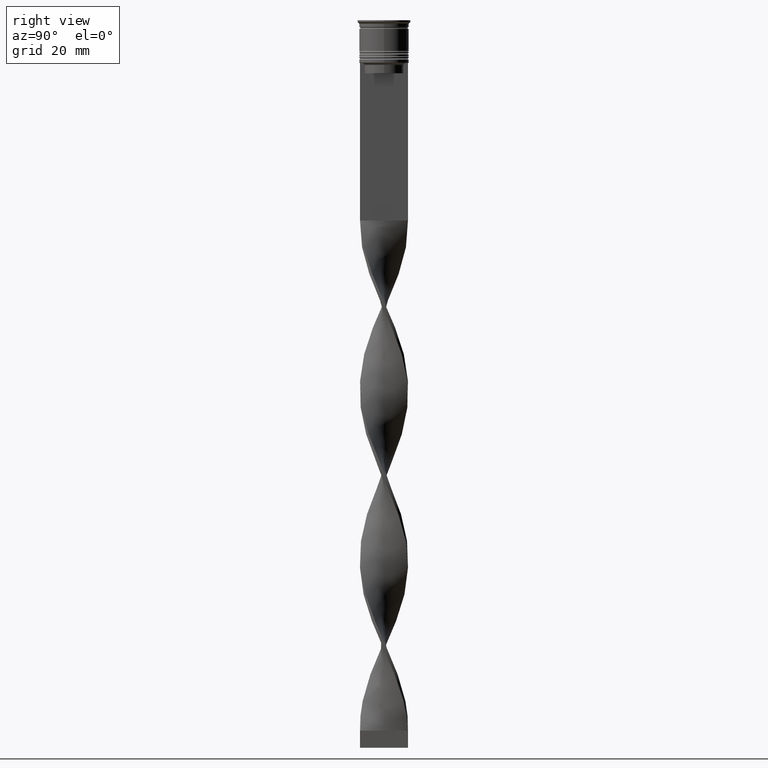
[diagram: clean part render]
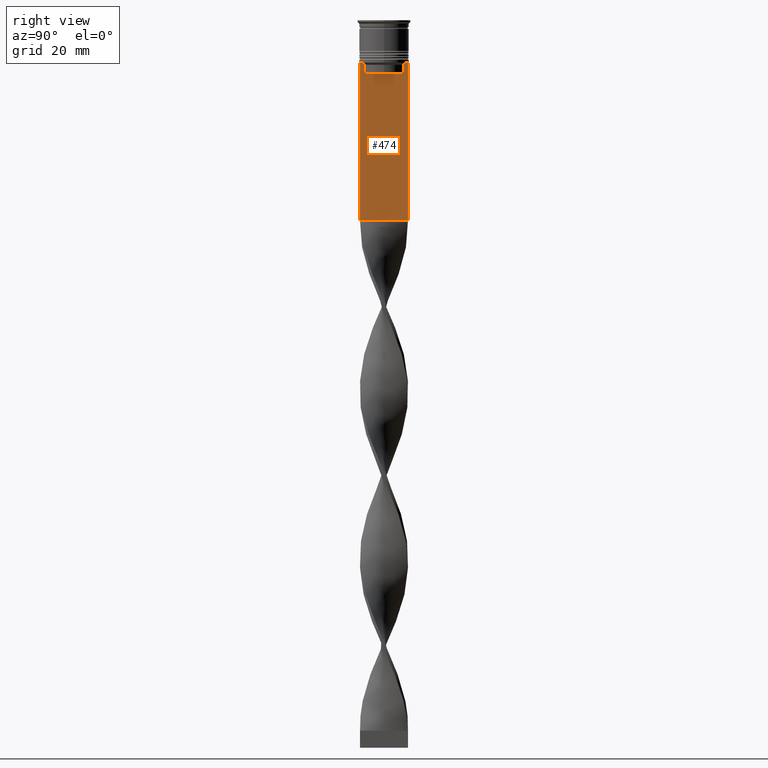
[diagram: same view with one face highlighted and labeled with its STEP entity id]
A machine part, right view. The second image highlights one B-rep face of the part: STEP entity #474.
In plain terms, the highlighted planar face has unit normal (-1, 0, 0).
Its self-contained STEP definition (entity closure, byte-faithful):
#152 = CARTESIAN_POINT ( 'NONE',  ( 0.5000000000000000000, -6.999999999999997335, -58.50000000000000000 ) ) ;
#184 = VECTOR ( 'NONE', #3706, 1000.000000000000000 ) ;
#238 = CARTESIAN_POINT ( 'NONE',  ( 0.5000000000000000000, -6.999999999999997335, -12.50000000000000000 ) ) ;
#260 = LINE ( 'NONE', #238, #3686 ) ;
#304 = CARTESIAN_POINT ( 'NONE',  ( 0.5000000000000000000, -6.999999999999997335, 1.535668847618198329 ) ) ;
#347 = ORIENTED_EDGE ( 'NONE', *, *, #971, .T. ) ;
#362 = VERTEX_POINT ( 'NONE', #3192 ) ;
#388 = CARTESIAN_POINT ( 'NONE',  ( 0.5000000000000000000, -5.962396079681185235, -12.66669137279835589 ) ) ;
#474 = ADVANCED_FACE ( 'NONE', ( #3275 ), #2997, .F. ) ;
#505 = VECTOR ( 'NONE', #1632, 1000.000000000000000 ) ;
#518 = ORIENTED_EDGE ( 'NONE', *, *, #2350, .T. ) ;
#636 = ORIENTED_EDGE ( 'NONE', *, *, #3229, .T. ) ;
#757 = ORIENTED_EDGE ( 'NONE', *, *, #2779, .T. ) ;
#761 = DIRECTION ( 'NONE',  ( 0.000000000000000000, 0.000000000000000000, -1.000000000000000000 ) ) ;
#792 = CARTESIAN_POINT ( 'NONE',  ( 0.5000000000000000000, -6.999999999999997335, -12.50000000000000000 ) ) ;
#824 = DIRECTION ( 'NONE',  ( 0.000000000000000000, -1.000000000000000000, 0.000000000000000000 ) ) ;
#860 = ORIENTED_EDGE ( 'NONE', *, *, #2825, .T. ) ;
#897 = EDGE_CURVE ( 'NONE', #3346, #2538, #2022, .T. ) ;
#971 = EDGE_CURVE ( 'NONE', #362, #3657, #260, .T. ) ;
#1009 = LINE ( 'NONE', #3083, #1117 ) ;
#1029 = CARTESIAN_POINT ( 'NONE',  ( 0.5000000000000000000, 5.962396146966409738, -12.66669130573587054 ) ) ;
#1034 = CARTESIAN_POINT ( 'NONE',  ( 0.5000000000000000000, -5.627832620112292794, -13.00000000000000000 ) ) ;
#1058 = ORIENTED_EDGE ( 'NONE', *, *, #897, .T. ) ;
#1117 = VECTOR ( 'NONE', #761, 1000.000000000000000 ) ;
#1191 = LINE ( 'NONE', #1779, #1241 ) ;
#1241 = VECTOR ( 'NONE', #1800, 1000.000000000000000 ) ;
#1310 = CARTESIAN_POINT ( 'NONE',  ( 0.5000000000000000000, -5.795128760752289665, -12.83336023406855197 ) ) ;
#1338 = CARTESIAN_POINT ( 'NONE',  ( 0.5000000000000000000, -5.627832620112292794, -15.50000000000000000 ) ) ;
#1357 = CARTESIAN_POINT ( 'NONE',  ( 0.5000000000000000000, 6.129641098791995368, -12.50000000000000000 ) ) ;
#1395 = CARTESIAN_POINT ( 'NONE',  ( 0.5000000000000000000, -6.999999999999997335, -58.50000000000000000 ) ) ;
#1423 = LINE ( 'NONE', #3712, #505 ) ;
#1441 = ORIENTED_EDGE ( 'NONE', *, *, #3463, .T. ) ;
#1485 = VERTEX_POINT ( 'NONE', #1338 ) ;
#1520 = VERTEX_POINT ( 'NONE', #2798 ) ;
#1553 = LINE ( 'NONE', #3609, #1669 ) ;
#1558 = CARTESIAN_POINT ( 'NONE',  ( 0.5000000000000000000, -6.129641098791995368, -12.50000000000000000 ) ) ;
#1632 = DIRECTION ( 'NONE',  ( 0.000000000000000000, 0.000000000000000000, -1.000000000000000000 ) ) ;
#1669 = VECTOR ( 'NONE', #2184, 1000.000000000000000 ) ;
#1696 = CARTESIAN_POINT ( 'NONE',  ( 0.5000000000000000000, 6.129641098791995368, -12.50000000000000000 ) ) ;
#1779 = CARTESIAN_POINT ( 'NONE',  ( 0.5000000000000000000, -6.999999999999997335, 1.535668847618198329 ) ) ;
#1800 = DIRECTION ( 'NONE',  ( 0.000000000000000000, 0.000000000000000000, -1.000000000000000000 ) ) ;
#1866 = LINE ( 'NONE', #3614, #3331 ) ;
#1890 = EDGE_LOOP ( 'NONE', ( #347, #2034, #518, #3024, #860, #757, #1441, #636, #1058, #3610 ) ) ;
#1901 = CARTESIAN_POINT ( 'NONE',  ( 0.5000000000000000000, 5.627832620112292794, -13.00000000000000000 ) ) ;
#2022 = LINE ( 'NONE', #1395, #184 ) ;
#2034 = ORIENTED_EDGE ( 'NONE', *, *, #3549, .T. ) ;
#2125 = CARTESIAN_POINT ( 'NONE',  ( 0.5000000000000000000, 5.649999999999998579, -15.50000000000000000 ) ) ;
#2184 = DIRECTION ( 'NONE',  ( 0.000000000000000000, -1.000000000000000000, 0.000000000000000000 ) ) ;
#2350 = EDGE_CURVE ( 'NONE', #2842, #1520, #1009, .T. ) ;
#2434 = LINE ( 'NONE', #2125, #3082 ) ;
#2538 = VERTEX_POINT ( 'NONE', #2937 ) ;
#2547 = CARTESIAN_POINT ( 'NONE',  ( 0.5000000000000000000, 5.795128834036803234, -12.83336016107156574 ) ) ;
#2647 = DIRECTION ( 'NONE',  ( 0.000000000000000000, 0.000000000000000000, 1.000000000000000000 ) ) ;
#2685 = DIRECTION ( 'NONE',  ( -1.000000000000000000, 0.000000000000000000, 0.000000000000000000 ) ) ;
#2779 = EDGE_CURVE ( 'NONE', #3523, #3185, #3266, .T. ) ;
#2798 = CARTESIAN_POINT ( 'NONE',  ( 0.5000000000000000000, 5.627832620112292794, -15.50000000000000000 ) ) ;
#2825 = EDGE_CURVE ( 'NONE', #1485, #3523, #1866, .T. ) ;
#2842 = VERTEX_POINT ( 'NONE', #1901 ) ;
#2913 = VERTEX_POINT ( 'NONE', #792 ) ;
#2915 = EDGE_CURVE ( 'NONE', #362, #2538, #1423, .T. ) ;
#2937 = CARTESIAN_POINT ( 'NONE',  ( 0.5000000000000000000, 7.000000000000002665, -58.50000000000000000 ) ) ;
#2997 = PLANE ( 'NONE',  #3803 ) ;
#3024 = ORIENTED_EDGE ( 'NONE', *, *, #3418, .T. ) ;
#3039 = DIRECTION ( 'NONE',  ( -0.000000000000000000, -0.000000000000000000, 1.000000000000000000 ) ) ;
#3082 = VECTOR ( 'NONE', #3308, 1000.000000000000000 ) ;
#3083 = CARTESIAN_POINT ( 'NONE',  ( 0.5000000000000000000, 5.627832620112292794, 0.000000000000000000 ) ) ;
#3089 = B_SPLINE_CURVE_WITH_KNOTS ( 'NONE', 3,
 ( #1357, #1029, #2547, #3682 ),
 .UNSPECIFIED., .F., .F.,
 ( 4, 4 ),
 ( 0.01045365750109871796, 0.01116204421161398619 ),
 .UNSPECIFIED. ) ;
#3185 = VERTEX_POINT ( 'NONE', #3189 ) ;
#3189 = CARTESIAN_POINT ( 'NONE',  ( 0.5000000000000000000, -6.129641098791995368, -12.50000000000000000 ) ) ;
#3192 = CARTESIAN_POINT ( 'NONE',  ( 0.5000000000000000000, 7.000000000000002665, -12.50000000000000000 ) ) ;
#3229 = EDGE_CURVE ( 'NONE', #2913, #3346, #1191, .T. ) ;
#3266 = B_SPLINE_CURVE_WITH_KNOTS ( 'NONE', 3,
 ( #3333, #1310, #388, #1558 ),
 .UNSPECIFIED., .F., .F.,
 ( 4, 4 ),
 ( 0.02651134470867368836, 0.02721991123504332449 ),
 .UNSPECIFIED. ) ;
#3275 = FACE_OUTER_BOUND ( 'NONE', #1890, .T. ) ;
#3308 = DIRECTION ( 'NONE',  ( 0.000000000000000000, -1.000000000000000000, 0.000000000000000000 ) ) ;
#3331 = VECTOR ( 'NONE', #3039, 1000.000000000000000 ) ;
#3333 = CARTESIAN_POINT ( 'NONE',  ( 0.5000000000000000000, -5.627832620112292794, -13.00000000000000000 ) ) ;
#3346 = VERTEX_POINT ( 'NONE', #152 ) ;
#3418 = EDGE_CURVE ( 'NONE', #1520, #1485, #2434, .T. ) ;
#3463 = EDGE_CURVE ( 'NONE', #3185, #2913, #1553, .T. ) ;
#3523 = VERTEX_POINT ( 'NONE', #1034 ) ;
#3549 = EDGE_CURVE ( 'NONE', #3657, #2842, #3089, .T. ) ;
#3609 = CARTESIAN_POINT ( 'NONE',  ( 0.5000000000000000000, -6.999999999999997335, -12.50000000000000000 ) ) ;
#3610 = ORIENTED_EDGE ( 'NONE', *, *, #2915, .F. ) ;
#3614 = CARTESIAN_POINT ( 'NONE',  ( 0.5000000000000000000, -5.627832620112292794, 0.000000000000000000 ) ) ;
#3657 = VERTEX_POINT ( 'NONE', #1696 ) ;
#3682 = CARTESIAN_POINT ( 'NONE',  ( 0.5000000000000000000, 5.627832620112292794, -13.00000000000000000 ) ) ;
#3686 = VECTOR ( 'NONE', #824, 1000.000000000000000 ) ;
#3706 = DIRECTION ( 'NONE',  ( 0.000000000000000000, 1.000000000000000000, 0.000000000000000000 ) ) ;
#3712 = CARTESIAN_POINT ( 'NONE',  ( 0.5000000000000000000, 7.000000000000002665, 1.535668847618198329 ) ) ;
#3803 = AXIS2_PLACEMENT_3D ( 'NONE', #304, #2685, #2647 ) ;